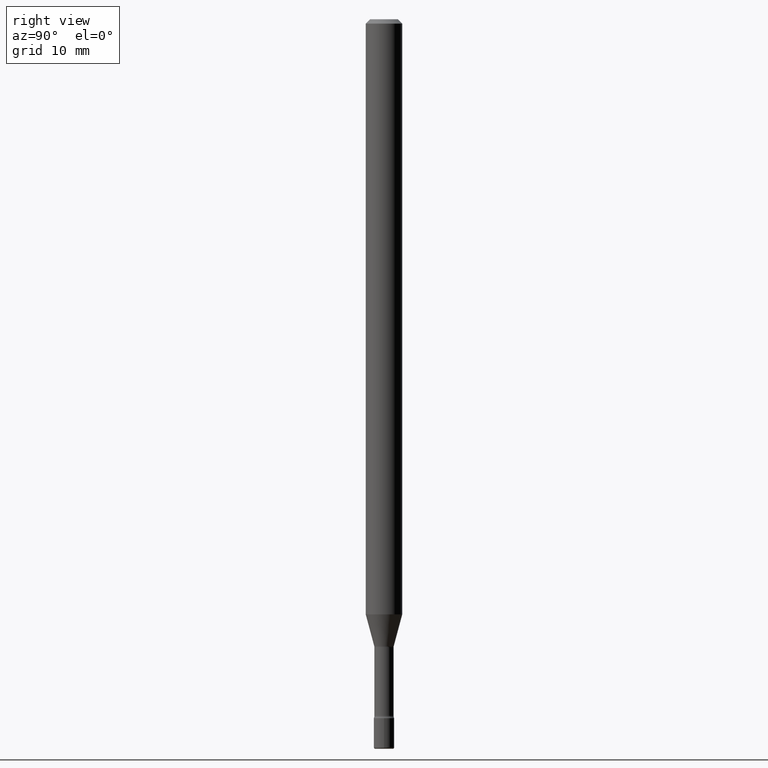
[diagram: clean part render]
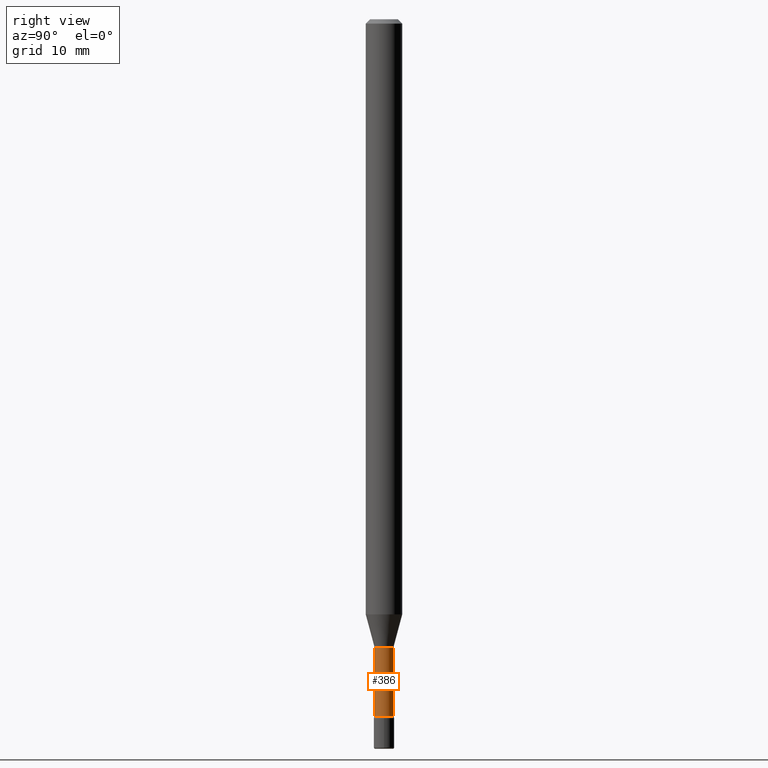
[diagram: same view with one face highlighted and labeled with its STEP entity id]
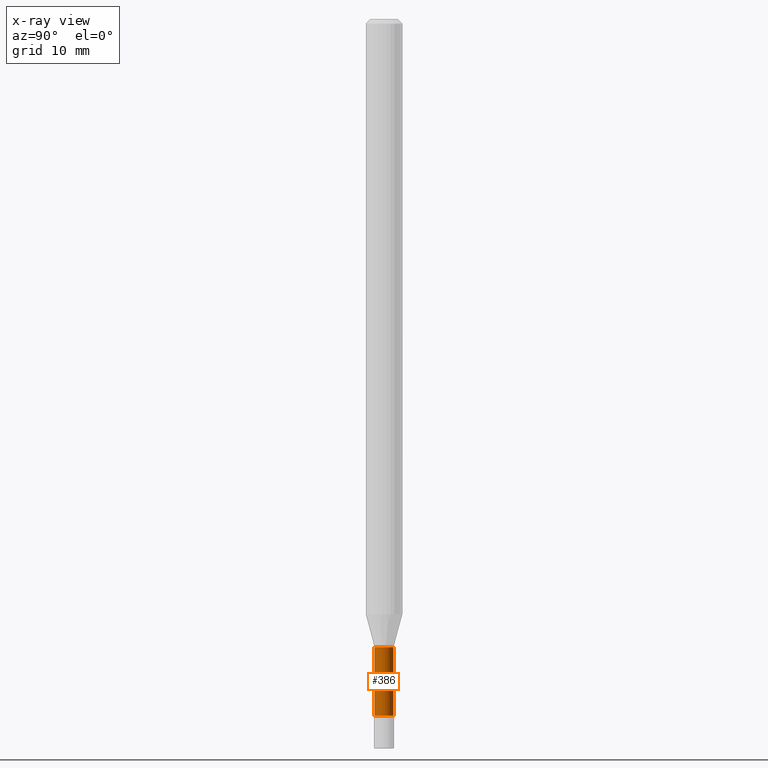
[diagram: x-ray of the same camera — body ghosted, the highlighted face saturated]
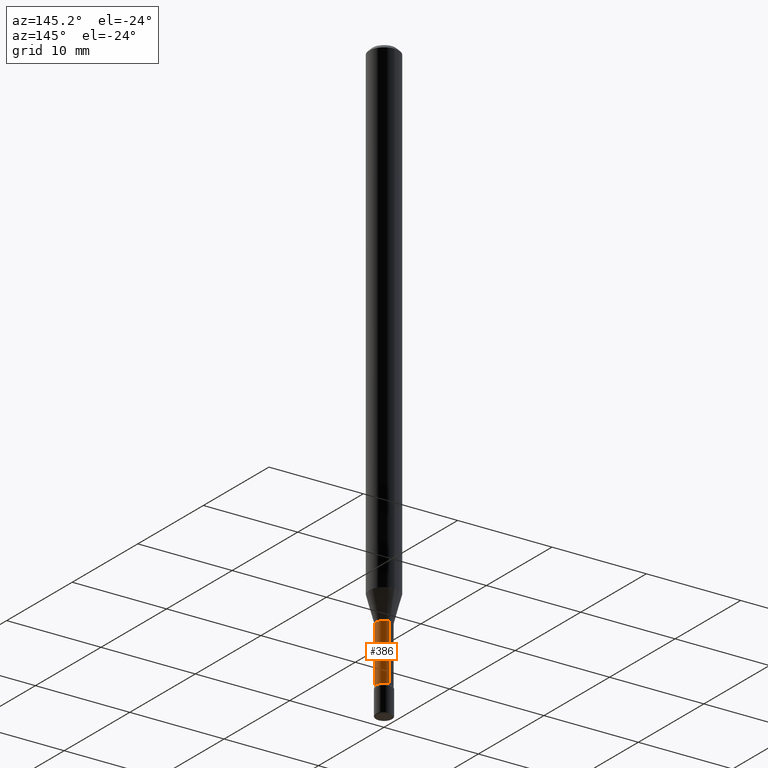
[diagram: same view with one face highlighted and labeled with its STEP entity id]
A machine part, right view. The second image highlights one B-rep face of the part: STEP entity #386.
The next image is the same camera in x-ray: the body ghosted, the highlighted face saturated — about 0% of this face is hidden behind the body in this view.
A second angle (auxiliary view) of the same face is appended — the face is thin or edge-on in the first view.
In plain terms, the highlighted cylindrical surface (edge-blend (fillet) strip) has radius 0.8357 mm, axis along (-0, 0, 1).
Its self-contained STEP definition (entity closure, byte-faithful):
#3 = CIRCLE ( 'NONE', #239, 0.03289999999999999869 ) ;
#31 = CARTESIAN_POINT ( 'NONE',  ( 5.837924017228111976E-29, -8.335737966594106856E-15, -2.387345589506696619 ) ) ;
#34 = DIRECTION ( 'NONE',  ( -6.982962677686265133E-15, -1.000000000000000000, 3.491634392286094348E-15 ) ) ;
#71 = FACE_OUTER_BOUND ( 'NONE', #307, .T. ) ;
#76 = DIRECTION ( 'NONE',  ( -2.445361929537154917E-29, 3.491634392286096321E-15, 1.000000000000000000 ) ) ;
#80 = AXIS2_PLACEMENT_3D ( 'NONE', #471, #76, #34 ) ;
#120 = ORIENTED_EDGE ( 'NONE', *, *, #185, .F. ) ;
#122 = CARTESIAN_POINT ( 'NONE',  ( 5.262357218587814766E-29, -7.513909179241206532E-15, -2.151974787463811101 ) ) ;
#130 = LINE ( 'NONE', #302, #499 ) ;
#185 = EDGE_CURVE ( 'NONE', #365, #442, #3, .T. ) ;
#208 = VECTOR ( 'NONE', #308, 39.37007874015748143 ) ;
#210 = CYLINDRICAL_SURFACE ( 'NONE', #80, 0.03290000000000004726 ) ;
#214 = DIRECTION ( 'NONE',  ( -2.445361929537154917E-29, 3.491634392286096321E-15, 1.000000000000000000 ) ) ;
#231 = CARTESIAN_POINT ( 'NONE',  ( 2.337685600651315248E-16, 0.03289999999999249081, -2.151974787463811101 ) ) ;
#239 = AXIS2_PLACEMENT_3D ( 'NONE', #122, #243, #250 ) ;
#243 = DIRECTION ( 'NONE',  ( -2.445361929537154917E-29, 3.491634392286096321E-15, 1.000000000000000000 ) ) ;
#247 = ORIENTED_EDGE ( 'NONE', *, *, #458, .T. ) ;
#250 = DIRECTION ( 'NONE',  ( -6.982962677686266711E-15, -1.000000000000000000, 0.000000000000000000 ) ) ;
#251 = EDGE_CURVE ( 'NONE', #508, #457, #541, .T. ) ;
#276 = CARTESIAN_POINT ( 'NONE',  ( 2.412292587906125932E-16, 0.03289999999999175528, -2.387345589506696619 ) ) ;
#294 = AXIS2_PLACEMENT_3D ( 'NONE', #31, #214, #427 ) ;
#302 = CARTESIAN_POINT ( 'NONE',  ( -2.297394720958784485E-16, -0.03290000000000004726, 5.929481703974587272E-16 ) ) ;
#307 = EDGE_LOOP ( 'NONE', ( #331, #247, #120, #373 ) ) ;
#308 = DIRECTION ( 'NONE',  ( -2.445361929537154917E-29, 3.491634392286096321E-15, 1.000000000000000000 ) ) ;
#331 = ORIENTED_EDGE ( 'NONE', *, *, #251, .T. ) ;
#358 = CARTESIAN_POINT ( 'NONE',  ( 2.337685600650732477E-16, 0.03290000000000004726, 3.631986273850333500E-16 ) ) ;
#365 = VERTEX_POINT ( 'NONE', #476 ) ;
#373 = ORIENTED_EDGE ( 'NONE', *, *, #399, .F. ) ;
#386 = ADVANCED_FACE ( 'NONE', ( #71 ), #210, .T. ) ;
#393 = LINE ( 'NONE', #358, #208 ) ;
#399 = EDGE_CURVE ( 'NONE', #508, #365, #130, .T. ) ;
#427 = DIRECTION ( 'NONE',  ( -6.982962677686266711E-15, -1.000000000000000000, 0.000000000000000000 ) ) ;
#442 = VERTEX_POINT ( 'NONE', #231 ) ;
#457 = VERTEX_POINT ( 'NONE', #276 ) ;
#458 = EDGE_CURVE ( 'NONE', #457, #442, #393, .T. ) ;
#471 = CARTESIAN_POINT ( 'NONE',  ( -1.169113584055446105E-44, 1.669184350826100908E-30, 4.780733988912460139E-16 ) ) ;
#475 = DIRECTION ( 'NONE',  ( -2.445361929537154917E-29, 3.491634392286096321E-15, 1.000000000000000000 ) ) ;
#476 = CARTESIAN_POINT ( 'NONE',  ( -2.297394720958255455E-16, -0.03290000000000751351, -2.151974787463811101 ) ) ;
#485 = CARTESIAN_POINT ( 'NONE',  ( -2.297394720958204179E-16, -0.03290000000000842945, -2.387345589506696619 ) ) ;
#499 = VECTOR ( 'NONE', #475, 39.37007874015748143 ) ;
#508 = VERTEX_POINT ( 'NONE', #485 ) ;
#541 = CIRCLE ( 'NONE', #294, 0.03290000000000008890 ) ;